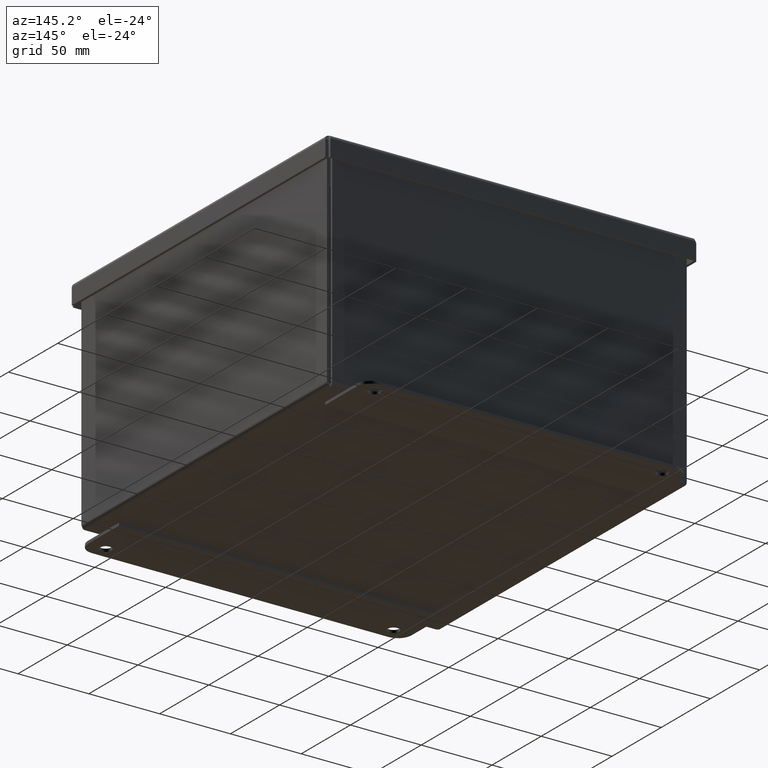
[diagram: clean part render]
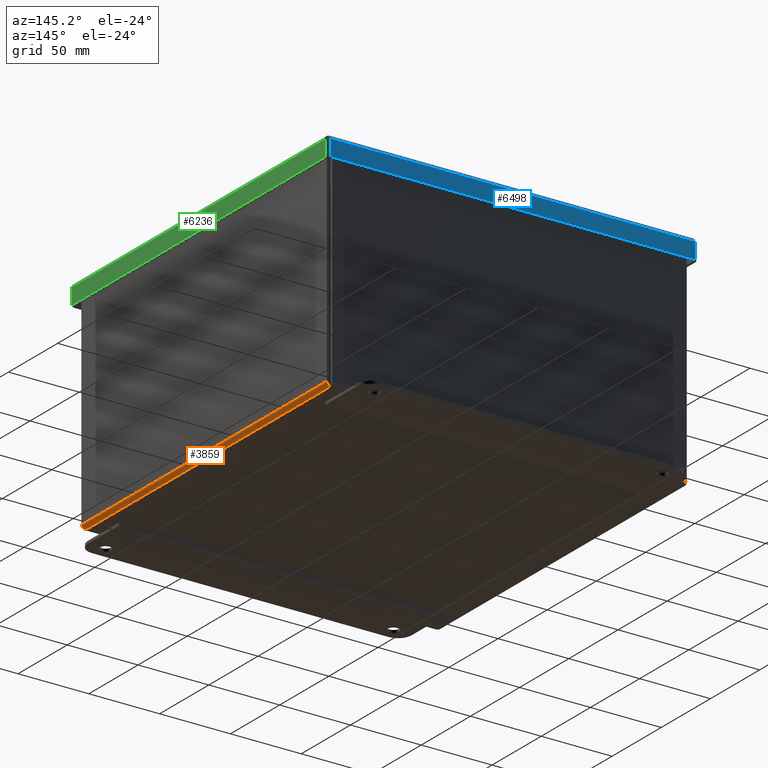
[diagram: same view with three faces highlighted in distinct colors, each labeled with its STEP entity id]
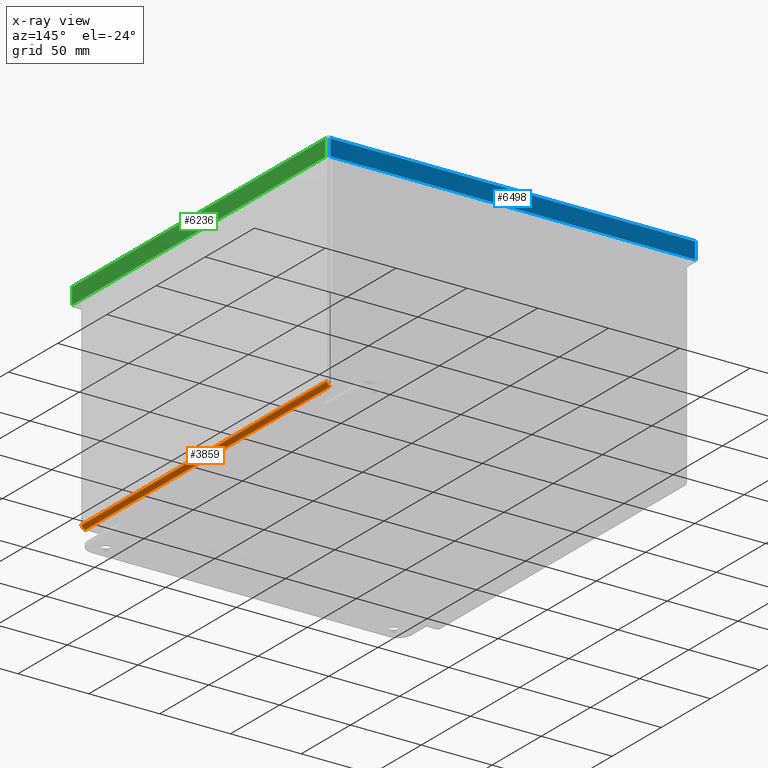
[diagram: x-ray of the same camera — body ghosted, the three highlighted faces saturated]
A machine part, auxiliary view with three faces highlighted in distinct colors.
The next image is the same camera in x-ray (body ghosted, the three faces saturated) — at least one of them is partly hidden behind the body in this view.
Their STEP definitions:

[orange] entity #3859 — the highlighted cylindrical surface (edge-blend (fillet) strip) has radius 2.6734 mm, axis along (0, -1, 0).
#2186=CARTESIAN_POINT('',(4.999999999999999,-4.914951456543961,0.105250000000003));
#2187=VERTEX_POINT('',#2186);
#2194=CARTESIAN_POINT('',(4.999999999999996,4.914951456543959,0.105250000000001));
#2195=VERTEX_POINT('',#2194);
#2196=CARTESIAN_POINT('',(5.0,-4.914951456543961,0.105250000000002));
#2197=DIRECTION('',(0.0,1.0,0.0));
#2198=VECTOR('',#2197,9.829902913087921);
#2199=LINE('',#2196,#2198);
#2200=EDGE_CURVE('',#2187,#2195,#2199,.T.);
#3668=CARTESIAN_POINT('',(4.894749999999998,4.89475,-3.278218E-017));
#3669=VERTEX_POINT('',#3668);
#3823=CARTESIAN_POINT('',(4.894749999999998,0.0,0.10525));
#3824=DIRECTION('',(2.797412E-016,-1.0,0.0));
#3825=DIRECTION('',(0.0,0.0,-1.0));
#3826=AXIS2_PLACEMENT_3D('',#3823,#3824,#3825);
#3827=CYLINDRICAL_SURFACE('',#3826,0.10525);
#3828=ORIENTED_EDGE('',*,*,#2200,.F.);
#3829=CARTESIAN_POINT('',(4.894750000000001,-4.894749999999999,-1.092739E-017));
#3830=VERTEX_POINT('',#3829);
#3831=CARTESIAN_POINT('',(4.894750000000003,-4.894749999999998,-2.622574E-016));
#3832=CARTESIAN_POINT('',(4.918368044770741,-4.897635922363421,7.586732E-016));
#3833=CARTESIAN_POINT('',(4.942015533532712,-4.900521844726844,0.008257485624538));
#3834=CARTESIAN_POINT('',(4.960387370642858,-4.903407767090267,0.022984748116843));
#3835=CARTESIAN_POINT('',(4.984883153456385,-4.907255663574833,0.042621098106583));
#3836=CARTESIAN_POINT('',(5.000000000000001,-4.911103560059397,0.073759273639022));
#3837=CARTESIAN_POINT('',(4.999999999999999,-4.914951456543961,0.105250000000005));
#3838=B_SPLINE_CURVE_WITH_KNOTS('',3,(#3831,#3832,#3833,#3834,#3835,#3836,#3837),.UNSPECIFIED.,.F.,.U.,(4,3,4),(0.0,0.673198425769247,1.57079632679491),.UNSPECIFIED.);
#3839=EDGE_CURVE('',#3830,#2187,#3838,.T.);
#3840=ORIENTED_EDGE('',*,*,#3839,.F.);
#3841=CARTESIAN_POINT('',(4.894749999999998,4.89475,0.0));
#3842=DIRECTION('',(0.0,-1.0,0.0));
#3843=VECTOR('',#3842,9.789499999999999);
#3844=LINE('',#3841,#3843);
#3845=EDGE_CURVE('',#3669,#3830,#3844,.T.);
#3846=ORIENTED_EDGE('',*,*,#3845,.F.);
#3847=CARTESIAN_POINT('',(4.999999999999996,4.914951456543959,0.105249999999999));
#3848=CARTESIAN_POINT('',(4.999999999999996,4.911103560059394,0.073759273639016));
#3849=CARTESIAN_POINT('',(4.984883153456379,4.90725566357483,0.042621098106579));
#3850=CARTESIAN_POINT('',(4.960387370642851,4.903407767090266,0.02298474811684));
#3851=CARTESIAN_POINT('',(4.942015533532704,4.900521844726844,0.008257485624536));
#3852=CARTESIAN_POINT('',(4.918368044770733,4.897635922363421,-5.978900E-016));
#3853=CARTESIAN_POINT('',(4.894749999999995,4.894749999999998,-2.622574E-016));
#3854=B_SPLINE_CURVE_WITH_KNOTS('',3,(#3847,#3848,#3849,#3850,#3851,#3852,#3853),.UNSPECIFIED.,.F.,.U.,(4,3,4),(0.0,0.897597901025654,1.570796326794895),.UNSPECIFIED.);
#3855=EDGE_CURVE('',#2195,#3669,#3854,.T.);
#3856=ORIENTED_EDGE('',*,*,#3855,.F.);
#3857=EDGE_LOOP('',(#3828,#3840,#3846,#3856));
#3858=FACE_OUTER_BOUND('',#3857,.T.);
#3859=ADVANCED_FACE('',(#3858),#3827,.T.);

[blue] entity #6498 — the highlighted planar face has unit normal (-0, 1, 0).
#6259=CARTESIAN_POINT('',(-5.071201456543957,5.156249999999996,-0.03125));
#6260=VERTEX_POINT('',#6259);
#6261=CARTESIAN_POINT('',(5.071201456543961,5.156249999999999,-0.03125));
#6262=VERTEX_POINT('',#6261);
#6263=CARTESIAN_POINT('',(-5.071201456543957,5.156249999999996,-0.03125));
#6264=DIRECTION('',(1.0,0.0,0.0));
#6265=VECTOR('',#6264,10.142402913087917);
#6266=LINE('',#6263,#6265);
#6267=EDGE_CURVE('',#6260,#6262,#6266,.T.);
#6343=CARTESIAN_POINT('',(5.071201456543959,5.156250000000002,-0.485999999999999));
#6344=VERTEX_POINT('',#6343);
#6345=CARTESIAN_POINT('',(5.071201456543959,5.156250000000002,-0.485999999999999));
#6346=DIRECTION('',(0.0,0.0,1.0));
#6347=VECTOR('',#6346,0.454749999999999);
#6348=LINE('',#6345,#6347);
#6349=EDGE_CURVE('',#6344,#6262,#6348,.T.);
#6451=CARTESIAN_POINT('',(-5.071201456543959,5.156249999999999,-0.485999999999999));
#6452=VERTEX_POINT('',#6451);
#6453=CARTESIAN_POINT('',(-5.071201456543959,5.156249999999996,-0.03125));
#6454=DIRECTION('',(0.0,0.0,-1.0));
#6455=VECTOR('',#6454,0.454749999999999);
#6456=LINE('',#6453,#6455);
#6457=EDGE_CURVE('',#6260,#6452,#6456,.T.);
#6475=CARTESIAN_POINT('',(-5.071201456543959,5.156249999999999,-0.485999999999999));
#6476=DIRECTION('',(1.0,0.0,0.0));
#6477=VECTOR('',#6476,10.142402913087917);
#6478=LINE('',#6475,#6477);
#6479=EDGE_CURVE('',#6452,#6344,#6478,.T.);
#6487=CARTESIAN_POINT('',(2.835087E-016,5.156249999999999,-0.222724367194025));
#6488=DIRECTION('',(0.0,1.0,0.0));
#6489=DIRECTION('',(1.0,0.0,0.0));
#6490=AXIS2_PLACEMENT_3D('',#6487,#6488,#6489);
#6491=PLANE('',#6490);
#6492=ORIENTED_EDGE('',*,*,#6267,.T.);
#6493=ORIENTED_EDGE('',*,*,#6349,.F.);
#6494=ORIENTED_EDGE('',*,*,#6479,.F.);
#6495=ORIENTED_EDGE('',*,*,#6457,.F.);
#6496=EDGE_LOOP('',(#6492,#6493,#6494,#6495));
#6497=FACE_OUTER_BOUND('',#6496,.T.);
#6498=ADVANCED_FACE('',(#6497),#6491,.T.);

[green] entity #6236 — the highlighted planar face has unit normal (1, 0, -0).
#5988=CARTESIAN_POINT('',(5.156249999999997,5.071201456543959,-0.031249999999997));
#5989=VERTEX_POINT('',#5988);
#5990=CARTESIAN_POINT('',(5.156250000000002,-5.071201456543959,-0.03125));
#5991=VERTEX_POINT('',#5990);
#5992=CARTESIAN_POINT('',(5.156249999999998,5.071201456543959,-0.03125));
#5993=DIRECTION('',(0.0,-1.0,0.0));
#5994=VECTOR('',#5993,10.142402913087917);
#5995=LINE('',#5992,#5994);
#5996=EDGE_CURVE('',#5989,#5991,#5995,.T.);
#6074=CARTESIAN_POINT('',(5.156250000000004,-5.071201456543959,-0.485999999999999));
#6075=VERTEX_POINT('',#6074);
#6076=CARTESIAN_POINT('',(5.156250000000004,-5.071201456543959,-0.485999999999999));
#6077=DIRECTION('',(0.0,0.0,1.0));
#6078=VECTOR('',#6077,0.454749999999999);
#6079=LINE('',#6076,#6078);
#6080=EDGE_CURVE('',#6075,#5991,#6079,.T.);
#6189=CARTESIAN_POINT('',(5.156250000000001,5.071201456543959,-0.485999999999996));
#6190=VERTEX_POINT('',#6189);
#6191=CARTESIAN_POINT('',(5.156249999999997,5.071201456543959,-0.031249999999997));
#6192=DIRECTION('',(0.0,0.0,-1.0));
#6193=VECTOR('',#6192,0.454749999999999);
#6194=LINE('',#6191,#6193);
#6195=EDGE_CURVE('',#5989,#6190,#6194,.T.);
#6213=CARTESIAN_POINT('',(5.156250000000001,5.071201456543959,-0.485999999999996));
#6214=DIRECTION('',(0.0,-1.0,0.0));
#6215=VECTOR('',#6214,10.142402913087917);
#6216=LINE('',#6213,#6215);
#6217=EDGE_CURVE('',#6190,#6075,#6216,.T.);
#6225=CARTESIAN_POINT('',(5.156250000000001,-4.280440E-017,-0.222724367194025));
#6226=DIRECTION('',(1.0,0.0,0.0));
#6227=DIRECTION('',(0.0,0.0,-1.0));
#6228=AXIS2_PLACEMENT_3D('',#6225,#6226,#6227);
#6229=PLANE('',#6228);
#6230=ORIENTED_EDGE('',*,*,#5996,.T.);
#6231=ORIENTED_EDGE('',*,*,#6080,.F.);
#6232=ORIENTED_EDGE('',*,*,#6217,.F.);
#6233=ORIENTED_EDGE('',*,*,#6195,.F.);
#6234=EDGE_LOOP('',(#6230,#6231,#6232,#6233));
#6235=FACE_OUTER_BOUND('',#6234,.T.);
#6236=ADVANCED_FACE('',(#6235),#6229,.T.);